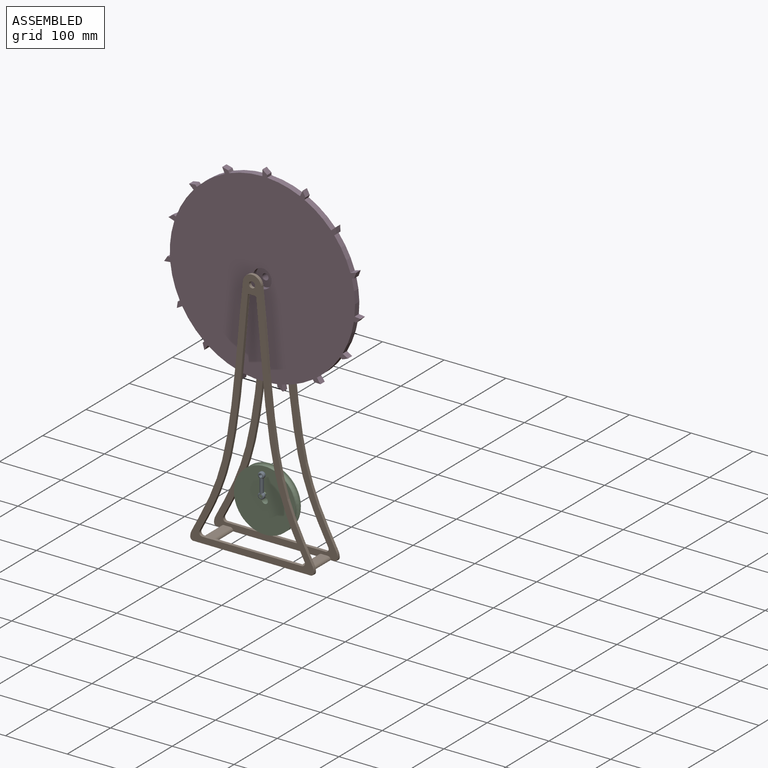
[diagram: assembled view]
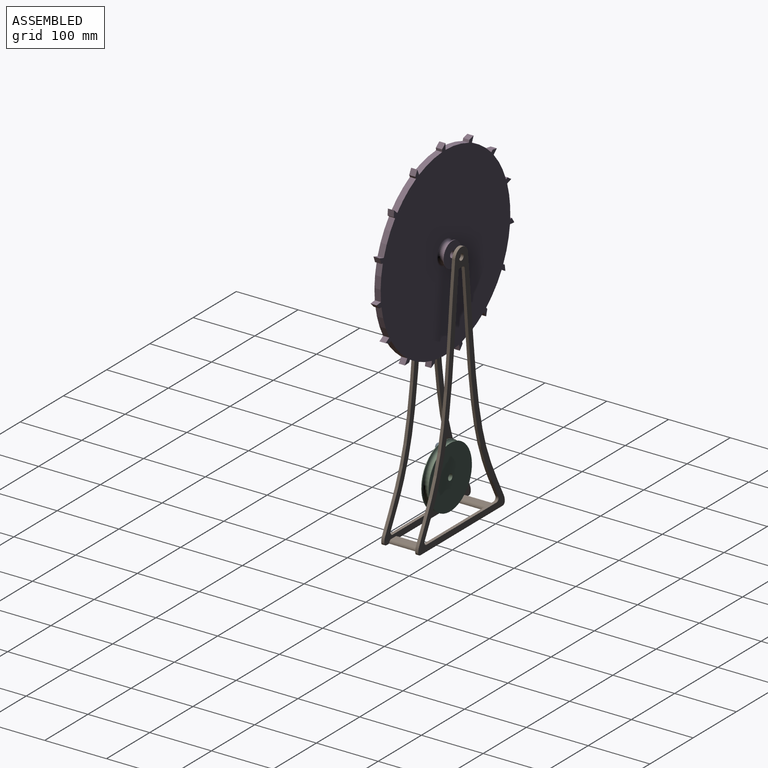
[diagram: assembled view, second angle]
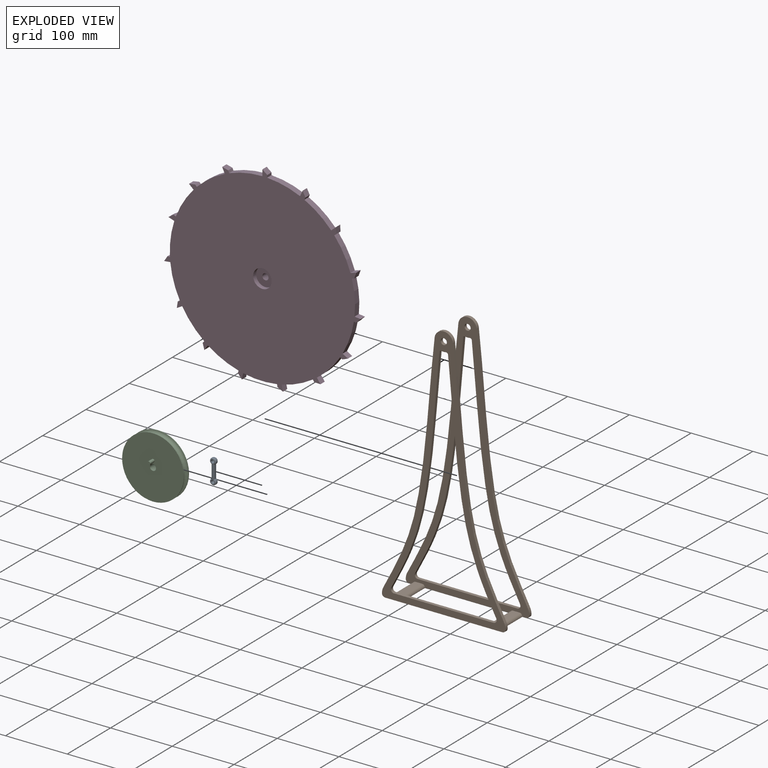
[diagram: exploded view]
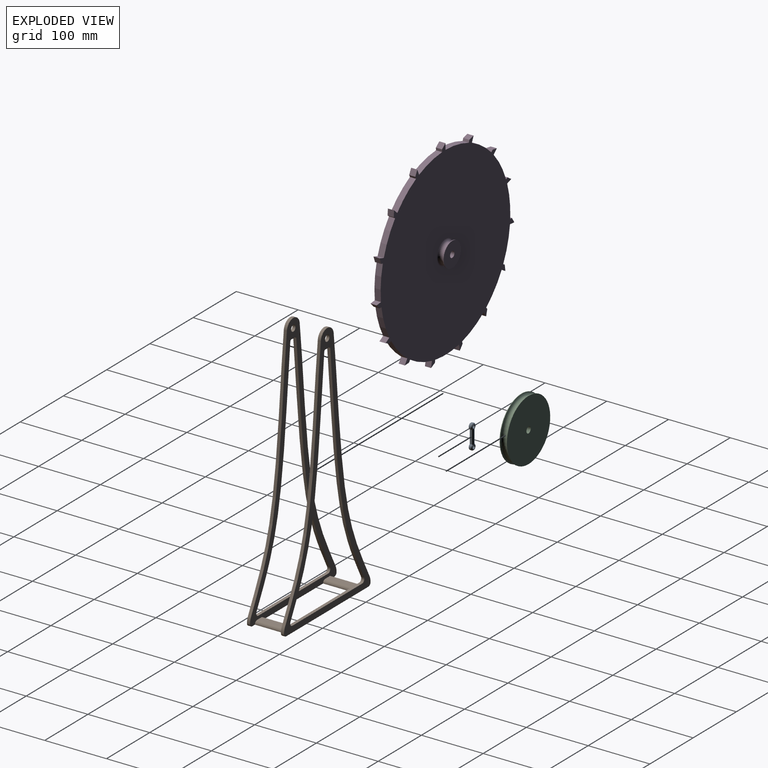
[diagram: exploded view, second angle]
ASSEMBLY  parts=4 mates=2
PART A: 20 faces, bbox 10.8x6x40.8 mm
  f0: cylinder r=5mm len=10mm, axis (0,1,0), area 52.4mm2, adj f1,f4,f12,f16
  f1: plane 21.34x2mm, normal (1,0,0), area 42.7mm2, adj f0,f2,f13,f17
  f2: cylinder r=5mm len=10mm, axis (0,1,0), area 52.4mm2, adj f1,f4,f15,f19
  f3: cylinder r=2.5mm len=5mm, axis (0,1,0), area 78.5mm2, adj f9,f10
  f4: plane 21.34x2mm, normal (-1,0,0), area 42.7mm2, adj f0,f2,f14,f18
  f5: cylinder r=2.5mm len=5mm, axis (0,1,0), area 78.5mm2, adj f8,f11
  f6: plane 24.08x1mm, normal (0,-1,0), area 24mm2, adj f10,f11,f17,f18
  f7: plane 24.08x1mm, normal (0,1,0), area 24mm2, adj f8,f9,f13,f14
  f8: torus R=3mm, axis (0,-1,0), area 13.2mm2, adj f5,f7,f15
  f9: torus R=3mm, axis (0,-1,0), area 13.2mm2, adj f3,f7,f12
  f10: torus R=3mm, axis (0,-1,0), area 13.2mm2, adj f3,f6,f16
  f11: torus R=3mm, axis (0,-1,0), area 13.2mm2, adj f5,f6,f19
  f12: torus R=3mm, axis (0,-1,0), area 72.8mm2, adj f0,f9,f13,f14
  f13: cylinder r=2mm len=24.08mm, axis (0,0,1), area 70mm2, adj f1,f7,f12,f15
  f14: cylinder r=2mm len=24.08mm, axis (0,0,-1), area 70mm2, adj f4,f7,f12,f15
  f15: torus R=3mm, axis (0,-1,0), area 72.8mm2, adj f2,f8,f13,f14
  f16: torus R=3mm, axis (0,-1,0), area 72.8mm2, adj f0,f10,f17,f18
  f17: cylinder r=2mm len=24.08mm, axis (0,0,-1), area 70mm2, adj f1,f6,f16,f19
  f18: cylinder r=2mm len=24.08mm, axis (0,0,1), area 70mm2, adj f4,f6,f16,f19
  f19: torus R=3mm, axis (0,-1,0), area 72.8mm2, adj f2,f11,f17,f18
PART B: 51 faces, bbox 200.1x60x415 mm
  f0: plane 161.3x5mm, normal (0,0,1), area 806.5mm2, adj f9,f10,f15,f16
  f1: plane 190.11x60mm, normal (0,0,-1), area 3901mm2, adj f9,f10,f17,f18,f24,f25,f26,f28
  f2: plane 5x0.25mm, normal (1,0,0), area 1.2mm2, adj f9,f10,f18,f22
  f3: extruded ~385.68x82.88mm, area 1992.1mm2, adj f4,f9,f10,f22
  f4: cylinder r=15mm len=30mm, axis (0,-1,0), area 235.6mm2, adj f3,f9,f10,f12
  f5: cylinder r=5mm len=10mm, axis (0,-1,0), area 157.1mm2, adj f9,f10
  f6: cylinder r=15mm len=6.59mm, axis (0,-1,0), area 33.2mm2, adj f9,f10,f19,f20
  f7: extruded ~332.26x60.98mm, area 1699.7mm2, adj f8,f9,f10,f20
  f8: extruded ~33.18x17.17mm, area 186.8mm2, adj f7,f9,f10,f16
  f9: plane 415x200.11mm, normal (0,1,0), area 10527.9mm2, adj f0,f1,f2,f3,f4,f5,f6,f7
  f10: plane 415x200.11mm, normal (0,-1,0), area 10349.4mm2, adj f0,f1,f2,f3,f4,f5,f6,f7
  f11: plane 5x0.25mm, normal (-1,0,0), area 1.2mm2, adj f9,f10,f17,f21
  f12: extruded ~385.68x82.88mm, area 1992.1mm2, adj f4,f9,f10,f21
  f13: extruded ~332.26x60.98mm, area 1699.7mm2, adj f9,f10,f14,f19
  f14: extruded ~33.18x17.17mm, area 186.8mm2, adj f9,f10,f13,f15
  f15: cylinder r=5mm len=7.31mm, axis (0,-1,0), area 51.3mm2, adj f0,f9,f10,f14
  f16: cylinder r=5mm len=7.31mm, axis (0,-1,0), area 51.3mm2, adj f0,f8,f9,f10
  f17: cylinder r=5mm len=5mm, axis (0,-1,0), area 39.3mm2, adj f1,f9,f10,f11
  f18: cylinder r=5mm len=5mm, axis (0,-1,0), area 39.3mm2, adj f1,f2,f9,f10
  f19: cylinder r=3mm len=5mm, axis (0,-1,0), area 25.3mm2, adj f6,f9,f10,f13
  f20: cylinder r=3mm len=5mm, axis (0,-1,0), area 25.3mm2, adj f6,f7,f9,f10
  f21: cylinder r=20mm len=9.07mm, axis (0,-1,0), area 47.1mm2, adj f9,f10,f11,f12
  f22: cylinder r=20mm len=9.07mm, axis (0,-1,0), area 47.1mm2, adj f2,f3,f9,f10
  f23: plane 50x10mm, normal (0,0,1), area 500mm2, adj f10,f24,f25,f26
  f24: cylinder r=5mm len=50mm, axis (0,-1,0), area 392.7mm2, adj f1,f10,f23,f26
  f25: cylinder r=5mm len=50mm, axis (0,1,0), area 392.7mm2, adj f1,f10,f23,f26
  f26: plane 415x200.11mm, normal (0,1,0), area 10349.4mm2, adj f1,f23,f24,f25,f27,f28,f29,f30
  f27: plane 50x10mm, normal (0,0,1), area 500mm2, adj f10,f26,f28,f29
  f28: cylinder r=5mm len=50mm, axis (0,-1,0), area 392.7mm2, adj f1,f10,f26,f27
  f29: cylinder r=5mm len=50mm, axis (0,1,0), area 392.7mm2, adj f1,f10,f26,f27
  f30: plane 161.3x5mm, normal (0,0,1), area 806.5mm2, adj f26,f38,f43,f44
  f31: plane 5x0.25mm, normal (1,0,0), area 1.2mm2, adj f26,f38,f46,f50
  f32: extruded ~385.68x82.88mm, area 1992.1mm2, adj f26,f33,f38,f50
  f33: cylinder r=15mm len=30mm, axis (0,1,0), area 235.6mm2, adj f26,f32,f38,f40
  f34: cylinder r=5mm len=10mm, axis (0,1,0), area 157.1mm2, adj f26,f38
  f35: cylinder r=15mm len=6.59mm, axis (0,1,0), area 33.2mm2, adj f26,f38,f47,f48
  f36: extruded ~332.26x60.98mm, area 1699.7mm2, adj f26,f37,f38,f48
  f37: extruded ~33.18x17.17mm, area 186.8mm2, adj f26,f36,f38,f44
  f38: plane 415x200.11mm, normal (0,-1,0), area 10527.9mm2, adj f1,f30,f31,f32,f33,f34,f35,f36
  f39: plane 5x0.25mm, normal (-1,0,0), area 1.2mm2, adj f26,f38,f45,f49
  f40: extruded ~385.68x82.88mm, area 1992.1mm2, adj f26,f33,f38,f49
  f41: extruded ~332.26x60.98mm, area 1699.7mm2, adj f26,f38,f42,f47
  f42: extruded ~33.18x17.17mm, area 186.8mm2, adj f26,f38,f41,f43
  f43: cylinder r=5mm len=7.31mm, axis (0,1,0), area 51.3mm2, adj f26,f30,f38,f42
  f44: cylinder r=5mm len=7.31mm, axis (0,1,0), area 51.3mm2, adj f26,f30,f37,f38
  f45: cylinder r=5mm len=5mm, axis (0,1,0), area 39.3mm2, adj f1,f26,f38,f39
  f46: cylinder r=5mm len=5mm, axis (0,1,0), area 39.3mm2, adj f1,f26,f31,f38
  f47: cylinder r=3mm len=5mm, axis (0,1,0), area 25.3mm2, adj f26,f35,f38,f41
  f48: cylinder r=3mm len=5mm, axis (0,1,0), area 25.3mm2, adj f26,f35,f36,f38
  f49: cylinder r=20mm len=9.07mm, axis (0,1,0), area 47.1mm2, adj f26,f38,f39,f40
  f50: cylinder r=20mm len=9.07mm, axis (0,1,0), area 47.1mm2, adj f26,f31,f32,f38
PART C: 8 faces, bbox 115.9x22x115.9 mm
  f0: cylinder r=5mm len=12mm, axis (0,1,0), area 377mm2, adj f2,f5
  f1: cylinder r=50mm len=100mm, axis (0,1,0), area 314.2mm2, adj f2,f3
  f2: plane 100x100mm, normal (0,-1,0), area 7755.8mm2, adj f0,f1,f6
  f3: torus R=50mm, axis (0,-1,0), area 4620.6mm2, adj f1,f4
  f4: cylinder r=50mm len=100mm, axis (0,-1,0), area 314.2mm2, adj f3,f5
  f5: plane 100x100mm, normal (0,1,0), area 7775.4mm2, adj f0,f4
  f6: cylinder r=2.5mm len=10mm, axis (0,1,0), area 157.1mm2, adj f2,f7
  f7: plane 5x5mm, normal (0,-1,0), area 19.6mm2, adj f6
PART D: 68 faces, bbox 318.2x21x316.5 mm
  f0: cylinder r=5mm len=14mm, axis (0,1,0), area 439.8mm2, adj f65,f67
  f1: plane 10x7.16mm, normal (0.72,0,-0.7), area 100mm2, adj f2,f60,f61,f62
  f2: plane 10x9.95mm, normal (0.1,0,0.99), area 100mm2, adj f1,f3,f61,f62
  f3: cylinder r=150mm len=54.7mm, axis (0,1,0), area 551.9mm2, adj f2,f4,f61,f62
  f4: plane 10x3.86mm, normal (0.26,0,-0.97), area 40mm2, adj f3,f5,f61,f62
  f5: plane 10x9.38mm, normal (0.94,0,-0.35), area 100mm2, adj f4,f6,f61,f62
  f6: plane 10x9.51mm, normal (-0.31,0,0.95), area 100mm2, adj f5,f7,f61,f62
  f7: cylinder r=150mm len=48.21mm, axis (0,1,0), area 551.9mm2, adj f6,f8,f61,f62
  f8: plane 10x3.11mm, normal (0.63,0,-0.78), area 40mm2, adj f7,f9,f61,f62
  f9: plane 10x9.98mm, normal (1,0,0.06), area 100mm2, adj f8,f10,f61,f62
  f10: plane 10x7.43mm, normal (-0.67,0,0.74), area 100mm2, adj f9,f11,f61,f62
  f11: cylinder r=150mm len=43.56mm, axis (0,1,0), area 551.9mm2, adj f10,f12,f61,f62
  f12: plane 10x3.57mm, normal (0.89,0,-0.45), area 40mm2, adj f11,f13,f61,f62
  f13: plane 10x8.86mm, normal (0.89,0,0.46), area 100mm2, adj f12,f14,f61,f62
  f14: plane 10x9.14mm, normal (-0.91,0,0.41), area 100mm2, adj f13,f15,f61,f62
  f15: cylinder r=150mm len=53.37mm, axis (0,1,0), area 551.9mm2, adj f14,f16,f61,f62
  f16: plane 10x4mm, normal (1,0,-0.05), area 40mm2, adj f15,f17,f61,f62
  f17: plane 10x7.85mm, normal (0.62,0,0.78), area 100mm2, adj f16,f18,f61,f62
  f18: plane 10x10mm, normal (-1,0,0), area 100mm2, adj f17,f19,f61,f62
  f19: cylinder r=150mm len=53.95mm, axis (0,1,0), area 551.9mm2, adj f18,f20,f61,f62
  f20: plane 10x3.73mm, normal (0.93,0,0.36), area 40mm2, adj f19,f21,f61,f62
  f21: plane 10x9.69mm, normal (0.25,0,0.97), area 100mm2, adj f20,f22,f61,f62
  f22: plane 10x9.14mm, normal (-0.91,0,-0.41), area 100mm2, adj f21,f23,f61,f62
  f23: cylinder r=150mm len=45.2mm, axis (0,1,0), area 551.9mm2, adj f22,f24,f61,f62
  f24: plane 10x2.83mm, normal (0.71,0,0.71), area 40mm2, adj f23,f25,f61,f62
  f25: plane 10x9.86mm, normal (-0.17,0,0.99), area 100mm2, adj f24,f26,f61,f62
  f26: plane 10x7.43mm, normal (-0.67,0,-0.74), area 100mm2, adj f25,f27,f61,f62
  f27: cylinder r=150mm len=46.81mm, axis (0,1,0), area 551.9mm2, adj f26,f28,f61,f62
  f28: plane 10x3.74mm, normal (0.36,0,0.93), area 40mm2, adj f27,f29,f61,f62
  f29: plane 10x8.32mm, normal (-0.55,0,0.83), area 100mm2, adj f28,f30,f61,f62
  f30: plane 10x9.51mm, normal (-0.31,0,-0.95), area 100mm2, adj f29,f31,f61,f62
  f31: cylinder r=150mm len=54.41mm, axis (0,1,0), area 551.9mm2, adj f30,f32,f61,f62
  f32: plane 10x3.99mm, normal (-0.05,0,1), area 40mm2, adj f31,f33,f61,f62
  f33: plane 10x8.45mm, normal (-0.85,0,0.53), area 100mm2, adj f32,f34,f61,f62
  f34: plane 10x9.95mm, normal (0.1,0,-0.99), area 100mm2, adj f33,f35,f61,f62
  f35: cylinder r=150mm len=52.61mm, axis (0,1,0), area 551.9mm2, adj f34,f36,f61,f62
  f36: plane 10x3.56mm, normal (-0.46,0,0.89), area 40mm2, adj f35,f37,f61,f62
  f37: plane 10x9.9mm, normal (-0.99,0,0.14), area 100mm2, adj f36,f38,f61,f62
  f38: plane 10x8.66mm, normal (0.5,0,-0.87), area 100mm2, adj f37,f39,f61,f62
  f39: cylinder r=150mm len=41.7mm, axis (0,1,0), area 551.9mm2, adj f38,f40,f61,f62
  f40: plane 10x3.11mm, normal (-0.78,0,0.63), area 40mm2, adj f39,f41,f61,f62
  f41: plane 10x9.63mm, normal (-0.96,0,-0.27), area 100mm2, adj f40,f42,f61,f62
  f42: plane 10x8.09mm, normal (0.81,0,-0.59), area 100mm2, adj f41,f43,f61,f62
  f43: cylinder r=150mm len=49.55mm, axis (0,1,0), area 551.9mm2, adj f42,f44,f61,f62
  f44: plane 10x3.87mm, normal (-0.97,0,0.26), area 40mm2, adj f43,f45,f61,f62
  f45: plane 10x7.7mm, normal (-0.77,0,-0.64), area 100mm2, adj f44,f46,f61,f62
  f46: plane 10x9.78mm, normal (0.98,0,-0.21), area 100mm2, adj f45,f47,f61,f62
  f47: cylinder r=150mm len=54.86mm, axis (0,1,0), area 551.9mm2, adj f46,f48,f61,f62
  f48: plane 10x3.95mm, normal (-0.99,0,-0.16), area 40mm2, adj f47,f49,f61,f62
  f49: plane 10x8.96mm, normal (-0.44,0,-0.9), area 100mm2, adj f48,f50,f61,f62
  f50: plane 10x9.78mm, normal (0.98,0,0.21), area 100mm2, adj f49,f51,f61,f62
  f51: cylinder r=150mm len=50.68mm, axis (0,1,0), area 551.9mm2, adj f50,f52,f61,f62
  f52: plane 10x3.35mm, normal (-0.84,0,-0.55), area 40mm2, adj f51,f53,f61,f62
  f53: plane 10x9.99mm, normal (-0.04,0,-1), area 100mm2, adj f52,f54,f61,f62
  f54: plane 10x8.09mm, normal (0.81,0,0.59), area 100mm2, adj f53,f55,f61,f62
  f55: cylinder r=150mm len=39.83mm, axis (0,1,0), area 551.9mm2, adj f54,f56,f61,f62
  f56: plane 10x3.36mm, normal (-0.54,0,-0.84), area 40mm2, adj f55,f57,f61,f62
  f57: plane 10x9.29mm, normal (0.37,0,-0.93), area 100mm2, adj f56,f58,f61,f62
  f58: plane 10x8.66mm, normal (0.5,0,0.87), area 100mm2, adj f57,f59,f61,f62
  f59: cylinder r=150mm len=51.74mm, axis (0,1,0), area 551.9mm2, adj f58,f60,f61,f62
  f60: plane 10x3.95mm, normal (-0.16,0,-0.99), area 40mm2, adj f1,f59,f61,f62
  f61: plane 318.25x316.5mm, normal (0,-1,0), area 70793mm2, adj f1,f2,f3,f4,f5,f6,f7,f8
  f62: plane 318.25x316.5mm, normal (0,1,0), area 70243.2mm2, adj f1,f2,f3,f4,f5,f6,f7,f8
  f63: torus R=20mm, axis (0,-1,0), area 1659.8mm2, adj f62,f64
  f64: cylinder r=20mm len=40mm, axis (0,-1,0), area 125.7mm2, adj f63,f65
  f65: plane 40x40mm, normal (0,1,0), area 1178.1mm2, adj f0,f64
  f66: cylinder r=15mm len=30mm, axis (0,-1,0), area 659.7mm2, adj f61,f67
  f67: plane 30x30mm, normal (0,-1,0), area 628.3mm2, adj f0,f66
PLACE A t=(-39.93,52.77,-61.92)mm
PLACE B t=(-39.82,57.03,-144.96)mm
PLACE C t=(-39.93,57.77,-71.92)mm
PLACE D t=(-39.82,61.03,255.04)mm
MATE fastened D.f0 <-> B.f6  axis (0,1,0) through (-39.82,72.03,255.04)mm
MATE fastened A.f3 <-> C.f6  axis (0,-1,0) through (-39.93,46.77,-61.92)mm
